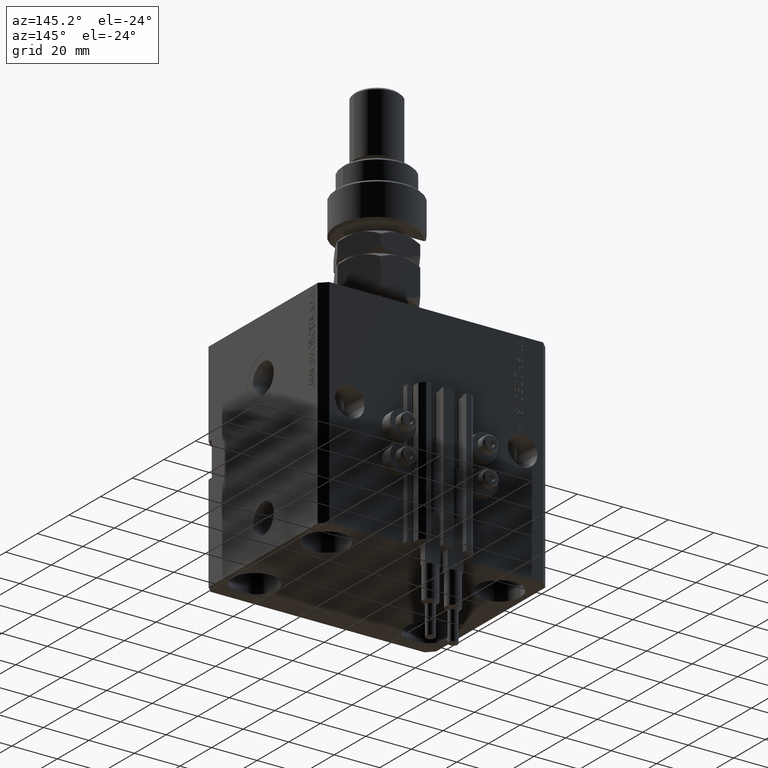
[diagram: clean part render]
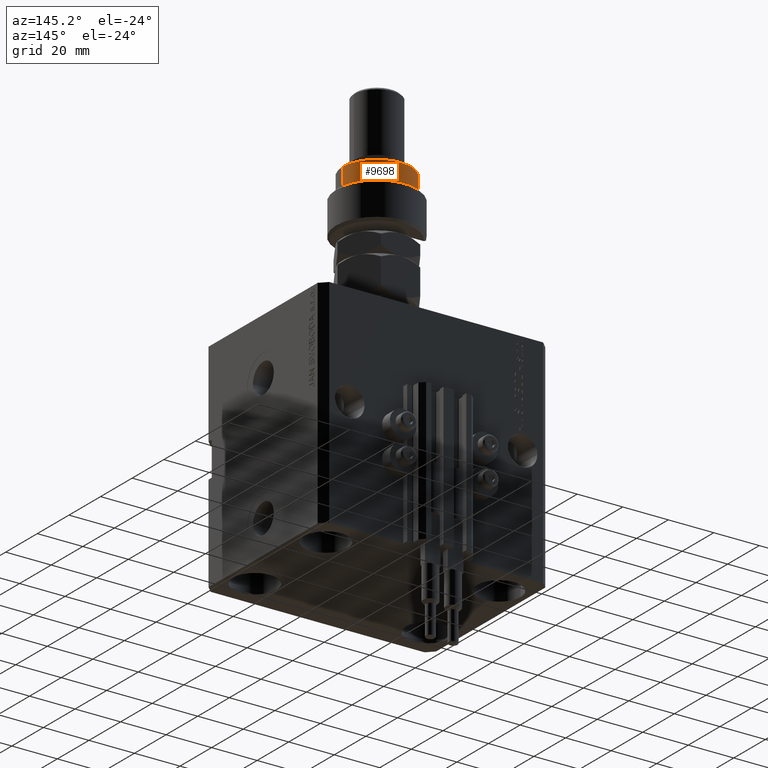
[diagram: same view with one face highlighted and labeled with its STEP entity id]
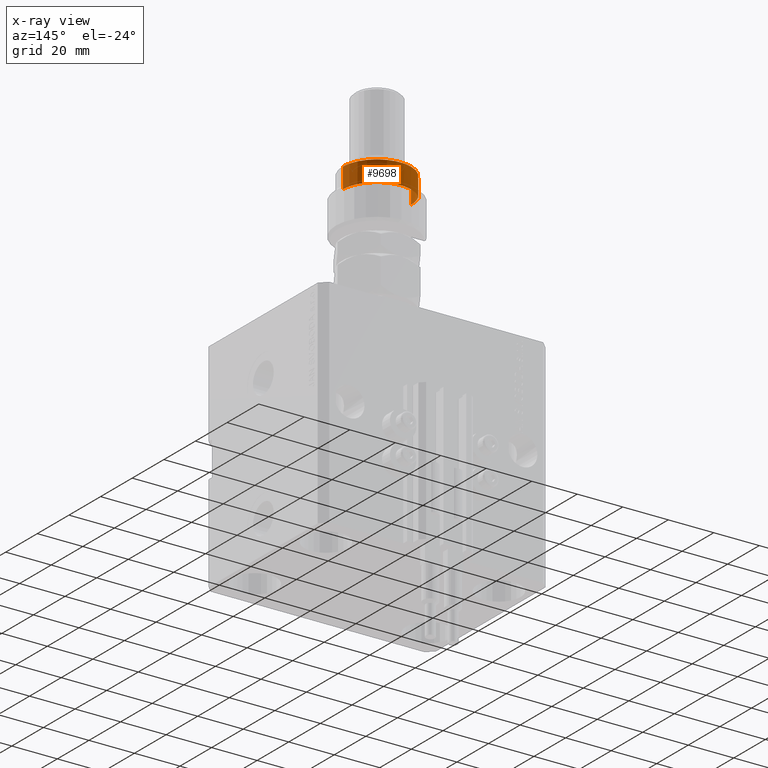
[diagram: x-ray of the same camera — body ghosted, the highlighted face saturated]
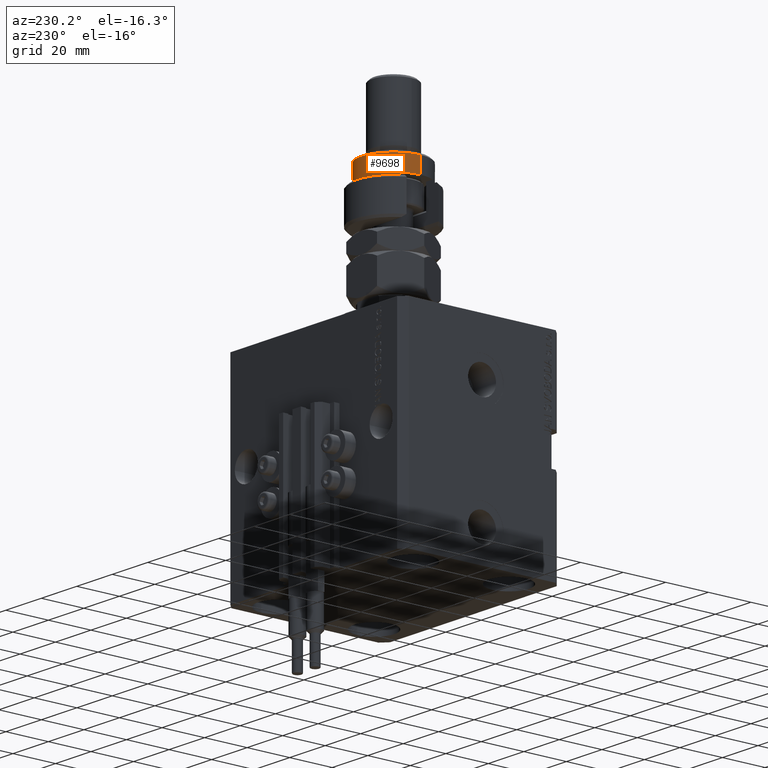
[diagram: same view with one face highlighted and labeled with its STEP entity id]
A machine part, auxiliary view. The second image highlights one B-rep face of the part: STEP entity #9698.
The next image is the same camera in x-ray: the body ghosted, the highlighted face saturated — about 0% of this face is hidden behind the body in this view.
A second angle (auxiliary view) of the same face is appended — the face is thin or edge-on in the first view.
In plain terms, the highlighted cylindrical surface (partial cylindrical patch) has radius 15 mm, axis along (-0, -0, -1).
Its self-contained STEP definition (entity closure, byte-faithful):
#1510 = VERTEX_POINT ( 'NONE', #15577 ) ;
#2052 = DIRECTION ( 'NONE',  ( -1.000000000000000000, 0.000000000000000000, 0.000000000000000000 ) ) ;
#2842 = ORIENTED_EDGE ( 'NONE', *, *, #41971, .T. ) ;
#3052 = ORIENTED_EDGE ( 'NONE', *, *, #11304, .T. ) ;
#3480 = DIRECTION ( 'NONE',  ( 0.000000000000000000, 0.000000000000000000, -1.000000000000000000 ) ) ;
#3911 = CARTESIAN_POINT ( 'NONE',  ( -15.00000000000000000, 0.000000000000000000, 26.00000000000000355 ) ) ;
#5306 = LINE ( 'NONE', #38544, #19931 ) ;
#5575 = AXIS2_PLACEMENT_3D ( 'NONE', #8048, #35790, #23991 ) ;
#5915 = ORIENTED_EDGE ( 'NONE', *, *, #15369, .F. ) ;
#6257 = DIRECTION ( 'NONE',  ( -0.000000000000000000, -0.000000000000000000, -1.000000000000000000 ) ) ;
#6491 = ORIENTED_EDGE ( 'NONE', *, *, #43314, .T. ) ;
#6608 = DIRECTION ( 'NONE',  ( 0.000000000000000000, 0.000000000000000000, 1.000000000000000000 ) ) ;
#8048 = CARTESIAN_POINT ( 'NONE',  ( 0.000000000000000000, 0.000000000000000000, 16.00000000000000000 ) ) ;
#8362 = LINE ( 'NONE', #3911, #28329 ) ;
#9698 = ADVANCED_FACE ( 'NONE', ( #37927 ), #26657, .T. ) ;
#10699 = CARTESIAN_POINT ( 'NONE',  ( 0.000000000000000000, 0.000000000000000000, 26.00000000000000355 ) ) ;
#10718 = VERTEX_POINT ( 'NONE', #33937 ) ;
#11178 = CARTESIAN_POINT ( 'NONE',  ( -12.99038105676658006, 7.500000000000000000, 16.00000000000000000 ) ) ;
#11304 = EDGE_CURVE ( 'NONE', #21533, #1510, #5306, .T. ) ;
#11355 = DIRECTION ( 'NONE',  ( 1.000000000000000000, 0.000000000000000000, 0.000000000000000000 ) ) ;
#11993 = CARTESIAN_POINT ( 'NONE',  ( 15.00000000000000000, 1.836970198721029589E-15, 16.00000000000000000 ) ) ;
#15304 = AXIS2_PLACEMENT_3D ( 'NONE', #15319, #39158, #50723 ) ;
#15319 = CARTESIAN_POINT ( 'NONE',  ( 0.000000000000000000, 0.000000000000000000, 17.50000000000000000 ) ) ;
#15369 = EDGE_CURVE ( 'NONE', #10718, #34166, #8362, .T. ) ;
#15577 = CARTESIAN_POINT ( 'NONE',  ( -12.99038105676658006, 7.500000000000000000, 17.50000000000000000 ) ) ;
#16461 = DIRECTION ( 'NONE',  ( -0.000000000000000000, -0.000000000000000000, -1.000000000000000000 ) ) ;
#18181 = AXIS2_PLACEMENT_3D ( 'NONE', #10699, #6257, #2052 ) ;
#19172 = EDGE_LOOP ( 'NONE', ( #2842, #6491, #50763, #3052, #24654, #5915 ) ) ;
#19931 = VECTOR ( 'NONE', #6608, 1000.000000000000000 ) ;
#21533 = VERTEX_POINT ( 'NONE', #11178 ) ;
#22859 = CARTESIAN_POINT ( 'NONE',  ( 0.000000000000000000, 0.000000000000000000, 24.99999999999997868 ) ) ;
#23415 = CARTESIAN_POINT ( 'NONE',  ( -15.00000000000000000, 0.000000000000000000, 17.50000000000000000 ) ) ;
#23991 = DIRECTION ( 'NONE',  ( 1.000000000000000000, 0.000000000000000000, 0.000000000000000000 ) ) ;
#24654 = ORIENTED_EDGE ( 'NONE', *, *, #39715, .F. ) ;
#25413 = CIRCLE ( 'NONE', #28776, 15.00000000000000000 ) ;
#26657 = CYLINDRICAL_SURFACE ( 'NONE', #18181, 15.00000000000000000 ) ;
#28329 = VECTOR ( 'NONE', #16461, 1000.000000000000000 ) ;
#28776 = AXIS2_PLACEMENT_3D ( 'NONE', #22859, #3480, #11355 ) ;
#31041 = DIRECTION ( 'NONE',  ( -0.000000000000000000, -0.000000000000000000, -1.000000000000000000 ) ) ;
#31174 = CIRCLE ( 'NONE', #15304, 15.00000000000000000 ) ;
#32840 = VECTOR ( 'NONE', #31041, 1000.000000000000000 ) ;
#33937 = CARTESIAN_POINT ( 'NONE',  ( -15.00000000000000000, 0.000000000000000000, 24.99999999999997868 ) ) ;
#34072 = CARTESIAN_POINT ( 'NONE',  ( 15.00000000000000000, 1.836970198721029589E-15, 24.99999999999997868 ) ) ;
#34166 = VERTEX_POINT ( 'NONE', #23415 ) ;
#35790 = DIRECTION ( 'NONE',  ( 0.000000000000000000, 0.000000000000000000, 1.000000000000000000 ) ) ;
#35906 = VERTEX_POINT ( 'NONE', #11993 ) ;
#37927 = FACE_OUTER_BOUND ( 'NONE', #19172, .T. ) ;
#38544 = CARTESIAN_POINT ( 'NONE',  ( -12.99038105676658006, 7.500000000000000000, 26.00000000000000355 ) ) ;
#39158 = DIRECTION ( 'NONE',  ( 0.000000000000000000, 0.000000000000000000, -1.000000000000000000 ) ) ;
#39715 = EDGE_CURVE ( 'NONE', #34166, #1510, #31174, .T. ) ;
#41971 = EDGE_CURVE ( 'NONE', #10718, #42318, #25413, .T. ) ;
#42318 = VERTEX_POINT ( 'NONE', #34072 ) ;
#43314 = EDGE_CURVE ( 'NONE', #42318, #35906, #47589, .T. ) ;
#47589 = LINE ( 'NONE', #51009, #32840 ) ;
#49122 = CIRCLE ( 'NONE', #5575, 15.00000000000000000 ) ;
#50723 = DIRECTION ( 'NONE',  ( -1.000000000000000000, 0.000000000000000000, 0.000000000000000000 ) ) ;
#50763 = ORIENTED_EDGE ( 'NONE', *, *, #50988, .T. ) ;
#50988 = EDGE_CURVE ( 'NONE', #35906, #21533, #49122, .T. ) ;
#51009 = CARTESIAN_POINT ( 'NONE',  ( 15.00000000000000000, 1.836970198721029589E-15, 26.00000000000000355 ) ) ;